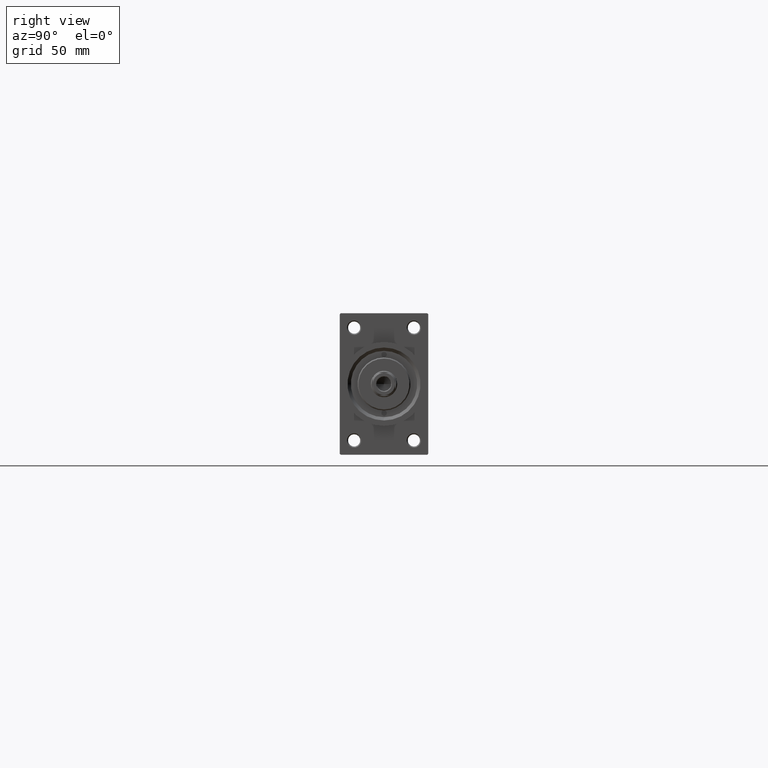
[diagram: clean part render]
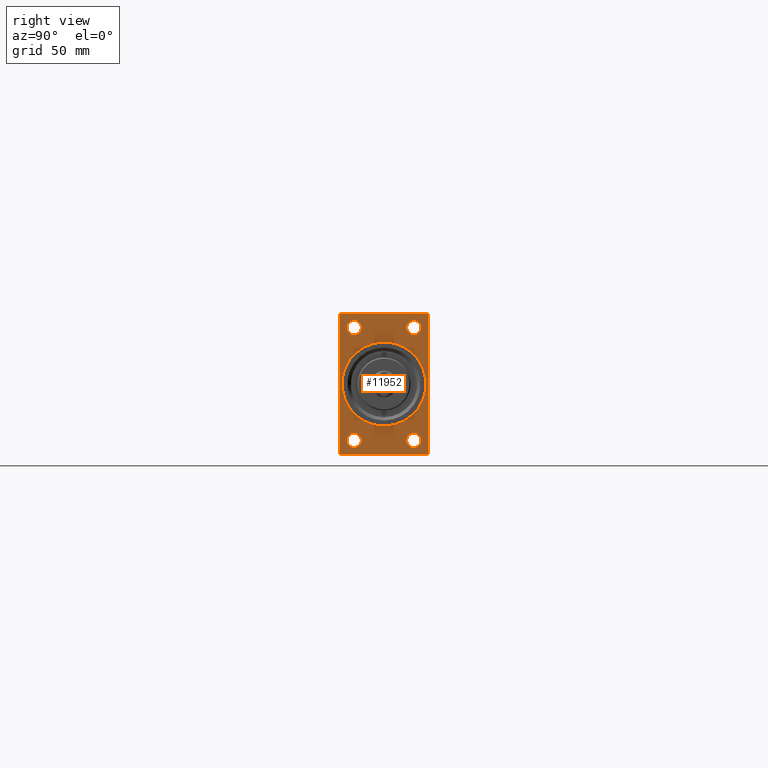
[diagram: same view with one face highlighted and labeled with its STEP entity id]
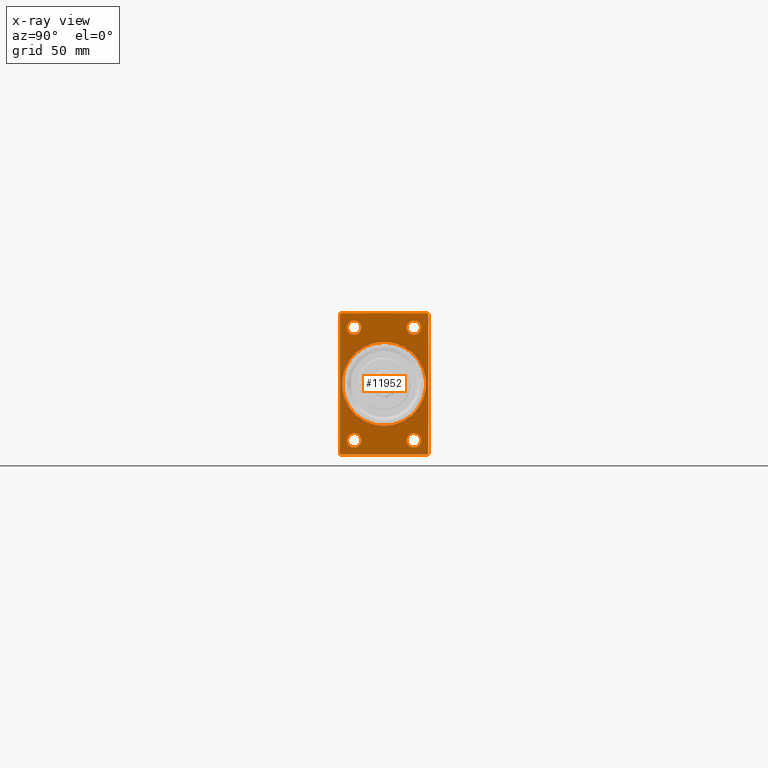
[diagram: x-ray of the same camera — body ghosted, the highlighted face saturated]
A machine part, right view. The second image highlights one B-rep face of the part: STEP entity #11952.
The next image is the same camera in x-ray: the body ghosted, the highlighted face saturated — about 0% of this face is hidden behind the body in this view.
In plain terms, the highlighted planar face has unit normal (-1, 0, 0).
Its self-contained STEP definition (entity closure, byte-faithful):
#23 = VECTOR ( 'NONE', #47320, 1000.000000000000114 ) ;
#397 = DIRECTION ( 'NONE',  ( 0.000000000000000000, 0.000000000000000000, -1.000000000000000000 ) ) ;
#473 = DIRECTION ( 'NONE',  ( 0.000000000000000000, 0.000000000000000000, 1.000000000000000000 ) ) ;
#516 = EDGE_LOOP ( 'NONE', ( #36895, #2333 ) ) ;
#707 = CARTESIAN_POINT ( 'NONE',  ( 289.0000000000000000, -13.50000000000000178, 28.75000000000003197 ) ) ;
#1003 = VERTEX_POINT ( 'NONE', #13237 ) ;
#1259 = ORIENTED_EDGE ( 'NONE', *, *, #7741, .T. ) ;
#1401 = DIRECTION ( 'NONE',  ( 0.000000000000000000, -1.000000000000000000, -1.734723475976807094E-16 ) ) ;
#1841 = VERTEX_POINT ( 'NONE', #38601 ) ;
#2333 = ORIENTED_EDGE ( 'NONE', *, *, #12563, .T. ) ;
#2414 = VECTOR ( 'NONE', #33693, 1000.000000000000000 ) ;
#2543 = CARTESIAN_POINT ( 'NONE',  ( 289.0000000000000000, -13.50000000000000533, -22.24999999999996447 ) ) ;
#2934 = CIRCLE ( 'NONE', #29683, 19.00000000000000000 ) ;
#3347 = CARTESIAN_POINT ( 'NONE',  ( 289.0000000000000000, 20.00000000000000000, 31.50000000000002842 ) ) ;
#4292 = LINE ( 'NONE', #8597, #45133 ) ;
#5989 = EDGE_CURVE ( 'NONE', #36796, #13540, #27326, .T. ) ;
#6264 = ORIENTED_EDGE ( 'NONE', *, *, #17395, .T. ) ;
#6801 = ORIENTED_EDGE ( 'NONE', *, *, #34391, .T. ) ;
#7741 = EDGE_CURVE ( 'NONE', #12109, #11939, #32716, .T. ) ;
#7809 = DIRECTION ( 'NONE',  ( -1.000000000000000000, -0.000000000000000000, -0.000000000000000000 ) ) ;
#7952 = CARTESIAN_POINT ( 'NONE',  ( 289.0000000000000000, -13.50000000000000178, 22.24999999999997158 ) ) ;
#8479 = EDGE_CURVE ( 'NONE', #16657, #40942, #2934, .T. ) ;
#8597 = CARTESIAN_POINT ( 'NONE',  ( 289.0000000000000000, 20.00000000000000000, -32.00000000000000000 ) ) ;
#9209 = CARTESIAN_POINT ( 'NONE',  ( 289.0000000000000000, -13.50000000000000178, 25.50000000000000355 ) ) ;
#9221 = CARTESIAN_POINT ( 'NONE',  ( 289.0000000000000000, 0.000000000000000000, 0.000000000000000000 ) ) ;
#9641 = EDGE_LOOP ( 'NONE', ( #41935, #34311 ) ) ;
#9813 = ORIENTED_EDGE ( 'NONE', *, *, #18304, .F. ) ;
#9959 = CARTESIAN_POINT ( 'NONE',  ( 289.0000000000000000, 0.000000000000000000, 0.000000000000000000 ) ) ;
#10693 = AXIS2_PLACEMENT_3D ( 'NONE', #26077, #40688, #19172 ) ;
#11186 = CARTESIAN_POINT ( 'NONE',  ( 289.0000000000000000, -13.50000000000000533, -25.49999999999999645 ) ) ;
#11725 = CARTESIAN_POINT ( 'NONE',  ( 289.0000000000000000, 13.49999999999999822, 25.50000000000000355 ) ) ;
#11939 = VERTEX_POINT ( 'NONE', #7952 ) ;
#11952 = ADVANCED_FACE ( 'NONE', ( #33531, #23234, #31125, #41893, #12012, #23927 ), #12483, .F. ) ;
#12012 = FACE_BOUND ( 'NONE', #9641, .T. ) ;
#12109 = VERTEX_POINT ( 'NONE', #707 ) ;
#12138 = DIRECTION ( 'NONE',  ( -1.000000000000000000, -0.000000000000000000, -0.000000000000000000 ) ) ;
#12152 = VERTEX_POINT ( 'NONE', #22712 ) ;
#12175 = LINE ( 'NONE', #19601, #21038 ) ;
#12239 = CIRCLE ( 'NONE', #10693, 3.250000000000030642 ) ;
#12483 = PLANE ( 'NONE',  #34991 ) ;
#12563 = EDGE_CURVE ( 'NONE', #33527, #39345, #31213, .T. ) ;
#12720 = DIRECTION ( 'NONE',  ( -0.000000000000000000, 0.000000000000000000, 1.000000000000000000 ) ) ;
#13104 = EDGE_CURVE ( 'NONE', #12152, #18370, #34288, .T. ) ;
#13125 = DIRECTION ( 'NONE',  ( -1.000000000000000000, -0.000000000000000000, -0.000000000000000000 ) ) ;
#13237 = CARTESIAN_POINT ( 'NONE',  ( 289.0000000000000000, 20.00000000000000000, -31.50000000000002842 ) ) ;
#13366 = DIRECTION ( 'NONE',  ( 0.000000000000000000, 0.000000000000000000, 1.000000000000000000 ) ) ;
#13540 = VERTEX_POINT ( 'NONE', #30071 ) ;
#13954 = CARTESIAN_POINT ( 'NONE',  ( 289.0000000000000000, -19.49999999999997158, -32.00000000000000000 ) ) ;
#14149 = VECTOR ( 'NONE', #38883, 1000.000000000000114 ) ;
#14354 = CARTESIAN_POINT ( 'NONE',  ( 289.0000000000000000, 20.00000000000000000, -31.50000000000002842 ) ) ;
#14576 = ORIENTED_EDGE ( 'NONE', *, *, #41974, .T. ) ;
#15499 = CARTESIAN_POINT ( 'NONE',  ( 289.0000000000000000, -13.50000000000000533, -25.49999999999999645 ) ) ;
#15652 = EDGE_CURVE ( 'NONE', #18370, #12152, #12239, .T. ) ;
#15965 = CARTESIAN_POINT ( 'NONE',  ( 289.0000000000000000, -13.50000000000000533, -28.75000000000002487 ) ) ;
#16657 = VERTEX_POINT ( 'NONE', #47095 ) ;
#17155 = DIRECTION ( 'NONE',  ( 1.000000000000000000, 0.000000000000000000, 0.000000000000000000 ) ) ;
#17395 = EDGE_CURVE ( 'NONE', #29910, #1003, #47090, .T. ) ;
#17930 = AXIS2_PLACEMENT_3D ( 'NONE', #40565, #7809, #22383 ) ;
#18304 = EDGE_CURVE ( 'NONE', #29910, #25212, #4292, .T. ) ;
#18370 = VERTEX_POINT ( 'NONE', #45646 ) ;
#18415 = CARTESIAN_POINT ( 'NONE',  ( 289.0000000000000000, 13.49999999999999822, -28.75000000000002842 ) ) ;
#18661 = DIRECTION ( 'NONE',  ( -1.000000000000000000, -0.000000000000000000, -0.000000000000000000 ) ) ;
#18866 = VERTEX_POINT ( 'NONE', #46979 ) ;
#19172 = DIRECTION ( 'NONE',  ( 0.000000000000000000, 0.000000000000000000, 1.000000000000000000 ) ) ;
#19289 = ORIENTED_EDGE ( 'NONE', *, *, #15652, .T. ) ;
#19601 = CARTESIAN_POINT ( 'NONE',  ( 289.0000000000000000, 20.00000000000000000, 32.00000000000000000 ) ) ;
#20397 = EDGE_LOOP ( 'NONE', ( #19289, #37926 ) ) ;
#20693 = CARTESIAN_POINT ( 'NONE',  ( 289.0000000000000000, -19.49999999999997158, -32.00000000000000000 ) ) ;
#20848 = CARTESIAN_POINT ( 'NONE',  ( 289.0000000000000000, 13.49999999999999822, -25.50000000000000000 ) ) ;
#21005 = AXIS2_PLACEMENT_3D ( 'NONE', #11186, #25750, #34129 ) ;
#21038 = VECTOR ( 'NONE', #1401, 1000.000000000000000 ) ;
#21103 = ORIENTED_EDGE ( 'NONE', *, *, #32624, .T. ) ;
#21246 = EDGE_CURVE ( 'NONE', #36846, #1003, #25253, .T. ) ;
#21282 = AXIS2_PLACEMENT_3D ( 'NONE', #15499, #12138, #29831 ) ;
#21470 = CARTESIAN_POINT ( 'NONE',  ( 289.0000000000000000, -20.00000000000000000, 31.99999999999999289 ) ) ;
#21679 = CARTESIAN_POINT ( 'NONE',  ( 289.0000000000000000, 20.00000000000000000, 32.00000000000000000 ) ) ;
#21760 = VECTOR ( 'NONE', #47167, 1000.000000000000114 ) ;
#22146 = DIRECTION ( 'NONE',  ( 0.000000000000000000, 0.000000000000000000, -1.000000000000000000 ) ) ;
#22383 = DIRECTION ( 'NONE',  ( 0.000000000000000000, 0.000000000000000000, 1.000000000000000000 ) ) ;
#22692 = LINE ( 'NONE', #30350, #2414 ) ;
#22712 = CARTESIAN_POINT ( 'NONE',  ( 289.0000000000000000, 13.49999999999999822, 28.75000000000003553 ) ) ;
#22915 = CARTESIAN_POINT ( 'NONE',  ( 289.0000000000000000, -20.00000000000000000, 31.49999999999999289 ) ) ;
#23234 = FACE_BOUND ( 'NONE', #516, .T. ) ;
#23785 = DIRECTION ( 'NONE',  ( 1.000000000000000000, 0.000000000000000000, 0.000000000000000000 ) ) ;
#23927 = FACE_OUTER_BOUND ( 'NONE', #28254, .T. ) ;
#24384 = EDGE_CURVE ( 'NONE', #36846, #36139, #22692, .T. ) ;
#24991 = AXIS2_PLACEMENT_3D ( 'NONE', #39175, #13125, #13366 ) ;
#25094 = EDGE_LOOP ( 'NONE', ( #33409, #21103 ) ) ;
#25212 = VERTEX_POINT ( 'NONE', #20693 ) ;
#25253 = LINE ( 'NONE', #21679, #41424 ) ;
#25750 = DIRECTION ( 'NONE',  ( -1.000000000000000000, -0.000000000000000000, -0.000000000000000000 ) ) ;
#26077 = CARTESIAN_POINT ( 'NONE',  ( 289.0000000000000000, 13.49999999999999822, 25.50000000000000355 ) ) ;
#26220 = LINE ( 'NONE', #21470, #40875 ) ;
#26352 = CIRCLE ( 'NONE', #26387, 3.250000000000030642 ) ;
#26387 = AXIS2_PLACEMENT_3D ( 'NONE', #20848, #35180, #32076 ) ;
#26588 = DIRECTION ( 'NONE',  ( -1.000000000000000000, 0.000000000000000000, -0.000000000000000000 ) ) ;
#27326 = CIRCLE ( 'NONE', #24991, 3.250000000000030642 ) ;
#28185 = EDGE_CURVE ( 'NONE', #1841, #25212, #46931, .T. ) ;
#28254 = EDGE_LOOP ( 'NONE', ( #40646, #38970, #9813, #6264, #43029, #31870, #14576, #37490 ) ) ;
#29683 = AXIS2_PLACEMENT_3D ( 'NONE', #9959, #17155, #31727 ) ;
#29708 = AXIS2_PLACEMENT_3D ( 'NONE', #11725, #18661, #473 ) ;
#29831 = DIRECTION ( 'NONE',  ( 0.000000000000000000, 0.000000000000000000, 1.000000000000000000 ) ) ;
#29910 = VERTEX_POINT ( 'NONE', #39074 ) ;
#30071 = CARTESIAN_POINT ( 'NONE',  ( 289.0000000000000000, 13.49999999999999822, -22.24999999999996803 ) ) ;
#30350 = CARTESIAN_POINT ( 'NONE',  ( 289.0000000000000000, 19.50000000000000000, 32.00000000000000000 ) ) ;
#31125 = FACE_BOUND ( 'NONE', #25094, .T. ) ;
#31213 = CIRCLE ( 'NONE', #21282, 3.250000000000030642 ) ;
#31240 = CARTESIAN_POINT ( 'NONE',  ( 289.0000000000000000, -20.00000000000000000, 31.49999999999999289 ) ) ;
#31471 = LINE ( 'NONE', #31240, #14149 ) ;
#31727 = DIRECTION ( 'NONE',  ( 0.000000000000000000, 0.000000000000000000, -1.000000000000000000 ) ) ;
#31870 = ORIENTED_EDGE ( 'NONE', *, *, #24384, .T. ) ;
#32076 = DIRECTION ( 'NONE',  ( 0.000000000000000000, 0.000000000000000000, 1.000000000000000000 ) ) ;
#32624 = EDGE_CURVE ( 'NONE', #13540, #36796, #26352, .T. ) ;
#32638 = AXIS2_PLACEMENT_3D ( 'NONE', #9221, #23785, #38385 ) ;
#32716 = CIRCLE ( 'NONE', #41912, 3.250000000000030642 ) ;
#33409 = ORIENTED_EDGE ( 'NONE', *, *, #5989, .T. ) ;
#33527 = VERTEX_POINT ( 'NONE', #2543 ) ;
#33531 = FACE_BOUND ( 'NONE', #42940, .T. ) ;
#33693 = DIRECTION ( 'NONE',  ( 0.000000000000000000, -0.7071067811865671127, 0.7071067811865279218 ) ) ;
#34129 = DIRECTION ( 'NONE',  ( 0.000000000000000000, 0.000000000000000000, 1.000000000000000000 ) ) ;
#34288 = CIRCLE ( 'NONE', #29708, 3.250000000000030642 ) ;
#34311 = ORIENTED_EDGE ( 'NONE', *, *, #44959, .F. ) ;
#34391 = EDGE_CURVE ( 'NONE', #11939, #12109, #44651, .T. ) ;
#34991 = AXIS2_PLACEMENT_3D ( 'NONE', #38296, #26588, #12720 ) ;
#35180 = DIRECTION ( 'NONE',  ( -1.000000000000000000, -0.000000000000000000, -0.000000000000000000 ) ) ;
#35825 = EDGE_CURVE ( 'NONE', #44513, #1841, #26220, .T. ) ;
#36139 = VERTEX_POINT ( 'NONE', #36919 ) ;
#36796 = VERTEX_POINT ( 'NONE', #18415 ) ;
#36846 = VERTEX_POINT ( 'NONE', #3347 ) ;
#36895 = ORIENTED_EDGE ( 'NONE', *, *, #40680, .T. ) ;
#36919 = CARTESIAN_POINT ( 'NONE',  ( 289.0000000000000000, 19.50000000000000000, 32.00000000000000000 ) ) ;
#37490 = ORIENTED_EDGE ( 'NONE', *, *, #40735, .T. ) ;
#37926 = ORIENTED_EDGE ( 'NONE', *, *, #13104, .T. ) ;
#38296 = CARTESIAN_POINT ( 'NONE',  ( 289.0000000000000000, 0.000000000000000000, 0.000000000000000000 ) ) ;
#38385 = DIRECTION ( 'NONE',  ( 0.000000000000000000, 0.000000000000000000, -1.000000000000000000 ) ) ;
#38511 = CARTESIAN_POINT ( 'NONE',  ( 289.0000000000000000, 2.326828918379970970E-15, -19.00000000000000000 ) ) ;
#38601 = CARTESIAN_POINT ( 'NONE',  ( 289.0000000000000000, -20.00000000000000000, -31.49999999999997868 ) ) ;
#38754 = CIRCLE ( 'NONE', #32638, 19.00000000000000000 ) ;
#38883 = DIRECTION ( 'NONE',  ( -0.000000000000000000, -0.7071067811865474617, -0.7071067811865474617 ) ) ;
#38970 = ORIENTED_EDGE ( 'NONE', *, *, #28185, .T. ) ;
#39074 = CARTESIAN_POINT ( 'NONE',  ( 289.0000000000000000, 19.50000000000002842, -32.00000000000000000 ) ) ;
#39175 = CARTESIAN_POINT ( 'NONE',  ( 289.0000000000000000, 13.49999999999999822, -25.50000000000000000 ) ) ;
#39312 = DIRECTION ( 'NONE',  ( 0.000000000000000000, 0.000000000000000000, 1.000000000000000000 ) ) ;
#39345 = VERTEX_POINT ( 'NONE', #15965 ) ;
#40084 = CIRCLE ( 'NONE', #21005, 3.250000000000030642 ) ;
#40565 = CARTESIAN_POINT ( 'NONE',  ( 289.0000000000000000, -13.50000000000000178, 25.50000000000000355 ) ) ;
#40646 = ORIENTED_EDGE ( 'NONE', *, *, #35825, .T. ) ;
#40680 = EDGE_CURVE ( 'NONE', #39345, #33527, #40084, .T. ) ;
#40688 = DIRECTION ( 'NONE',  ( -1.000000000000000000, -0.000000000000000000, -0.000000000000000000 ) ) ;
#40735 = EDGE_CURVE ( 'NONE', #18866, #44513, #31471, .T. ) ;
#40875 = VECTOR ( 'NONE', #397, 1000.000000000000000 ) ;
#40942 = VERTEX_POINT ( 'NONE', #38511 ) ;
#41424 = VECTOR ( 'NONE', #22146, 1000.000000000000000 ) ;
#41893 = FACE_BOUND ( 'NONE', #20397, .T. ) ;
#41912 = AXIS2_PLACEMENT_3D ( 'NONE', #9209, #46020, #39312 ) ;
#41935 = ORIENTED_EDGE ( 'NONE', *, *, #8479, .F. ) ;
#41974 = EDGE_CURVE ( 'NONE', #36139, #18866, #12175, .T. ) ;
#42940 = EDGE_LOOP ( 'NONE', ( #6801, #1259 ) ) ;
#43029 = ORIENTED_EDGE ( 'NONE', *, *, #21246, .F. ) ;
#44513 = VERTEX_POINT ( 'NONE', #22915 ) ;
#44651 = CIRCLE ( 'NONE', #17930, 3.250000000000030642 ) ;
#44702 = DIRECTION ( 'NONE',  ( 0.000000000000000000, -1.000000000000000000, 0.000000000000000000 ) ) ;
#44959 = EDGE_CURVE ( 'NONE', #40942, #16657, #38754, .T. ) ;
#45133 = VECTOR ( 'NONE', #44702, 1000.000000000000000 ) ;
#45646 = CARTESIAN_POINT ( 'NONE',  ( 289.0000000000000000, 13.49999999999999822, 22.24999999999997513 ) ) ;
#46020 = DIRECTION ( 'NONE',  ( -1.000000000000000000, -0.000000000000000000, -0.000000000000000000 ) ) ;
#46931 = LINE ( 'NONE', #13954, #21760 ) ;
#46979 = CARTESIAN_POINT ( 'NONE',  ( 289.0000000000000000, -19.50000000000000000, 31.99999999999999289 ) ) ;
#47090 = LINE ( 'NONE', #14354, #23 ) ;
#47095 = CARTESIAN_POINT ( 'NONE',  ( 289.0000000000000000, 0.000000000000000000, 19.00000000000000000 ) ) ;
#47167 = DIRECTION ( 'NONE',  ( 0.000000000000000000, 0.7071067811865524577, -0.7071067811865425767 ) ) ;
#47320 = DIRECTION ( 'NONE',  ( -0.000000000000000000, 0.7071067811865474617, 0.7071067811865474617 ) ) ;